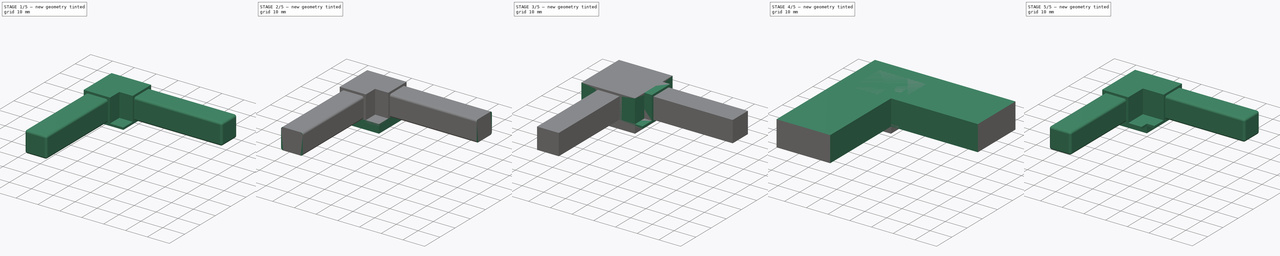
[diagram: build sequence overview — one tinted view per stage of 5, left to right]
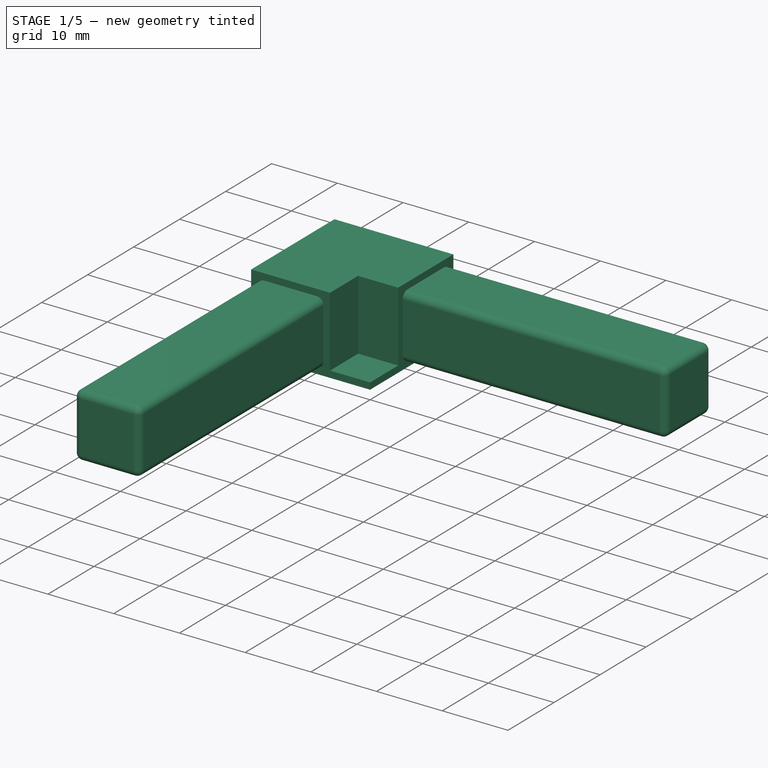
[diagram: stage 1 of 5 — iso view after this stage's code; geometry added in this stage tinted green]
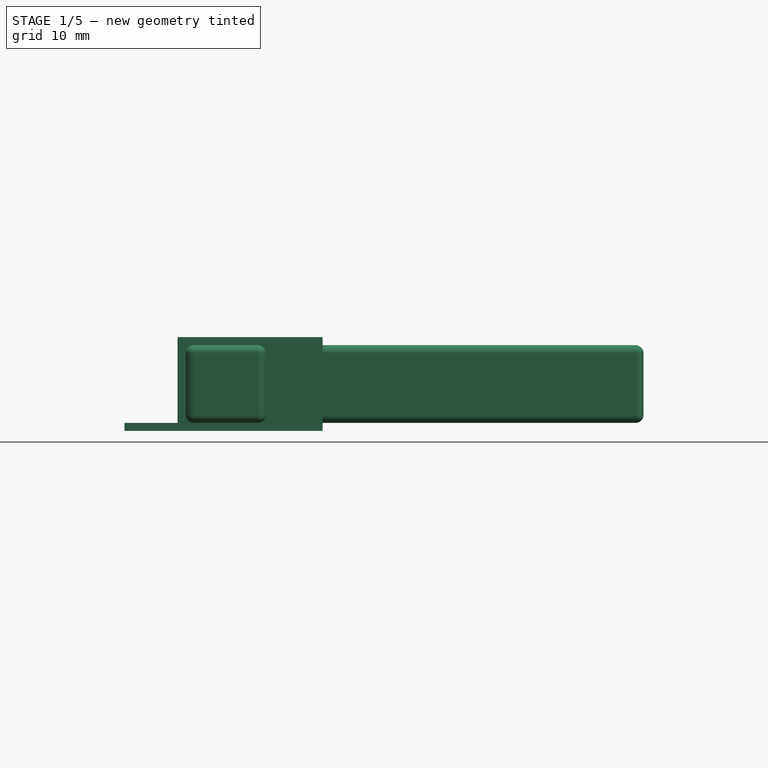
[diagram: stage 1 of 5 — front view after this stage's code; geometry added in this stage tinted green]
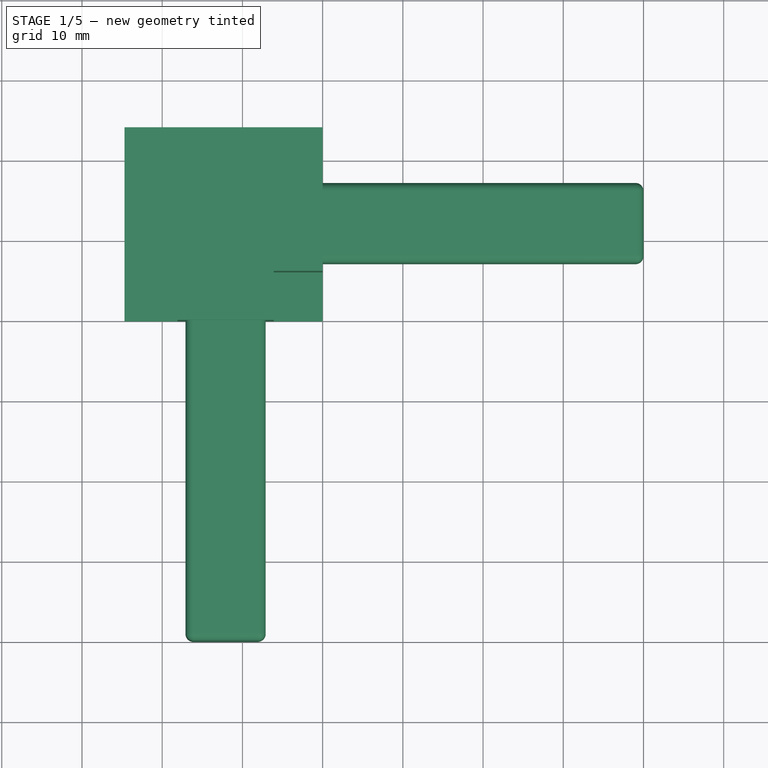
[diagram: stage 1 of 5 — top view after this stage's code; geometry added in this stage tinted green]
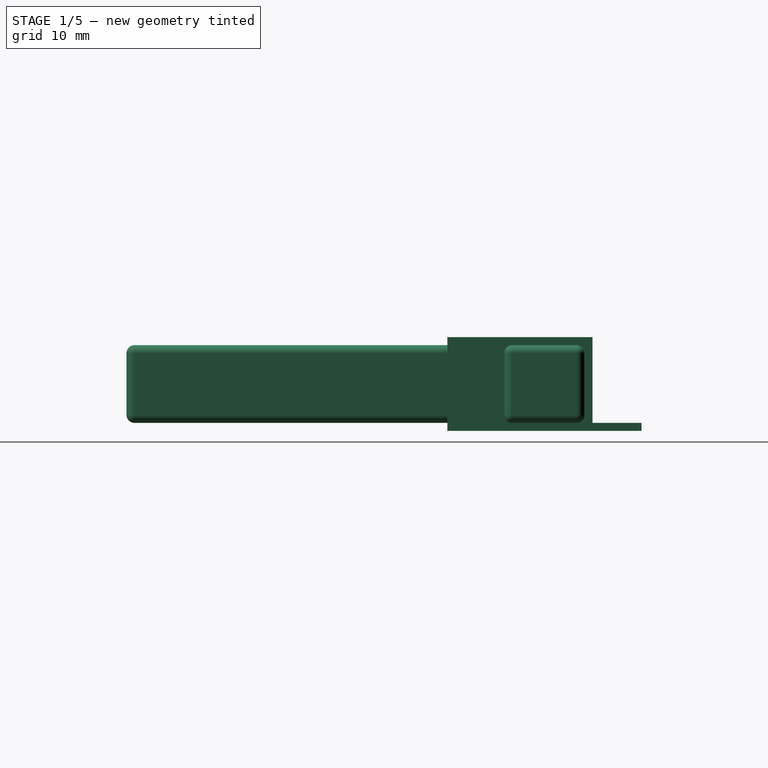
[diagram: stage 1 of 5 — right view after this stage's code; geometry added in this stage tinted green]
FCSTD DOCUMENT  (FreeCAD 2024.2R37179 (Git))
Label: Hoek
License: All rights reserved
LicenseURL: https://en.wikipedia.org/wiki/All_rights_reserved
objects: PartDesign::Pocket×20, Sketcher::SketchObject×16, PartDesign::Fillet×8, PartDesign::Pad×7, PartDesign::Body×4
note: 90 computed .brp shape members not serialized (recipe doc carries the construction recipe); baked Part::Feature solids carry a one-line shape summary decoded from their .brp

FEATURE [PartDesign::Body] Body002  label="Rechtsonder"
  Group = -> [Sketch008,Pad003,Sketch009,Pocket010,Sketch010,Pocket011,Sketch011,Pocket012,Fillet004,Fillet005,Pocket013,Pocket014,Pad004]
  Origin = -> Origin002
  Placement = pos=(59.8874,-16.0468,0) rot=(0,0,1;4.45059rad)
  Tip = -> Pad004
FEATURE [Sketcher::SketchObject] Sketch012
  AttachmentSupport = -> [XY_Plane003]
  FullyConstrained = true
  MapMode = 5
  sketch-geometry (6):
    g0: LineSegment StartX=0 StartY=0 StartZ=0 EndX=0 EndY=-40 EndZ=0
    g1: LineSegment StartX=0 StartY=-40 StartZ=0 EndX=-24.7 EndY=-40 EndZ=0
    g2: LineSegment StartX=-24.7 StartY=-40 StartZ=0 EndX=-24.7 EndY=24.7 EndZ=0
    g3: LineSegment StartX=-24.7 StartY=24.7 StartZ=0 EndX=40 EndY=24.7 EndZ=0
    g4: LineSegment StartX=40 StartY=24.7 StartZ=0 EndX=40 EndY=0 EndZ=0
    g5: LineSegment StartX=40 StartY=0 StartZ=0 EndX=0 EndY=0 EndZ=0
  constraints (17):
    c: Coincident(g-1,g0)
    c: PointOnObject(g0,g-2)
    c: Coincident(g0,g1)
    c: Horizontal(g1)
    c: Coincident(g1,g2)
    c: Vertical(g2)
    c: Coincident(g2,g3)
    c: Horizontal(g3)
    c: Coincident(g3,g4)
    c: PointOnObject(g4,g-1)
    c: Vertical(g4)
    c: Coincident(g4,g5)
    c: Coincident(g5,g0)
    c: DistanceX(g5,g5) = 40
    c: DistanceY(g0,g0) = 40
    c: DistanceX(g1,g1) = 24.7
    c: Equal(g1,g4)
FEATURE [PartDesign::Pad] Pad005
  Direction = (0,0,1)
  Length = 11.7
  Length2 = 10
  Profile = -> Sketch012
  ReferenceAxis = -> Sketch012 [N_Axis]
  Refine = true
  Suppressed = false
  Type = 0
  expr: Length = 11.7 mm
FEATURE [Sketcher::SketchObject] Sketch013
  AttachmentSupport = -> [Pad005]
  ExternalGeometry = -> [Pad005]
  FullyConstrained = true
  MapMode = 5
  Placement = pos=(40,0,0) rot=(0.57735,0.57735,0.57735;2.0944rad)
  sketch-geometry (8):
    g0: LineSegment StartX=7.1 StartY=10.7 StartZ=0 EndX=7.1 EndY=1 EndZ=0
    g1: LineSegment StartX=7.1 StartY=1 StartZ=0 EndX=17.1 EndY=1 EndZ=0
    g2: LineSegment StartX=17.1 StartY=1 StartZ=0 EndX=17.1 EndY=10.7 EndZ=0
    g3: LineSegment StartX=17.1 StartY=10.7 StartZ=0 EndX=7.1 EndY=10.7 EndZ=0
    g4: LineSegment StartX=24.7 StartY=11.7 StartZ=0 EndX=0 EndY=11.7 EndZ=0
    g5: LineSegment StartX=0 StartY=11.7 StartZ=0 EndX=0 EndY=0 EndZ=0
    g6: LineSegment StartX=0 StartY=0 StartZ=0 EndX=24.7 EndY=0 EndZ=0
    g7: LineSegment StartX=24.7 StartY=0 StartZ=0 EndX=24.7 EndY=11.7 EndZ=0
  constraints (22):
    c: Coincident(g0,g1)
    c: Coincident(g1,g2)
    c: Coincident(g2,g3)
    c: Coincident(g3,g0)
    c: Vertical(g0)
    c: Vertical(g2)
    c: Horizontal(g1)
    c: Horizontal(g3)
    c: Coincident(g4,g5)
    c: Coincident(g5,g6)
    c: Coincident(g6,g7)
    c: Coincident(g7,g4)
    c: Horizontal(g4)
    c: Horizontal(g6)
    c: Vertical(g5)
    c: Vertical(g7)
    c: Coincident(g4,g-3)
    c: Coincident(g5,g-1)
    c: DistanceX(g3,g3) = 10
    c: DistanceY(g0,g0) = 9.7
    c: DistanceX(g5,g0) = 7.1
    c: DistanceY(g6,g1) = 1
FEATURE [PartDesign::Pocket] Pocket015
  BaseFeature = -> Pad005
  Direction = (-1,0,0)
  Length = 40
  Length2 = 5
  Profile = -> Sketch013
  ReferenceAxis = -> Sketch013 [N_Axis]
  Refine = true
  Suppressed = false
  Type = 0
  expr: Length = 40
FEATURE [Sketcher::SketchObject] Sketch014
  AttachmentSupport = -> [Pocket015]
  ExternalGeometry = -> [Pocket015]
  FullyConstrained = true
  MapMode = 5
  Placement = pos=(0,-40,0) rot=(1,0,0;1.5708rad)
  sketch-geometry (8):
    g0: LineSegment StartX=-17.1 StartY=10.7 StartZ=0 EndX=-17.1 EndY=1 EndZ=0
    g1: LineSegment StartX=-17.1 StartY=1 StartZ=0 EndX=-7.1 EndY=1 EndZ=0
    g2: LineSegment StartX=-7.1 StartY=1 StartZ=0 EndX=-7.1 EndY=10.7 EndZ=0
    g3: LineSegment StartX=-7.1 StartY=10.7 StartZ=0 EndX=-17.1 EndY=10.7 EndZ=0
    g4: LineSegment StartX=-24.7 StartY=11.7 StartZ=0 EndX=-24.7 EndY=0 EndZ=0
    g5: LineSegment StartX=-24.7 StartY=0 StartZ=0 EndX=0 EndY=0 EndZ=0
    g6: LineSegment StartX=0 StartY=0 StartZ=0 EndX=0 EndY=11.7 EndZ=0
    g7: LineSegment StartX=0 StartY=11.7 StartZ=0 EndX=-24.7 EndY=11.7 EndZ=0
  constraints (22):
    c: Coincident(g0,g1)
    c: Coincident(g1,g2)
    c: Coincident(g2,g3)
    c: Coincident(g3,g0)
    c: Vertical(g0)
    c: Vertical(g2)
    c: Horizontal(g1)
    c: Horizontal(g3)
    c: Coincident(g4,g5)
    c: Coincident(g5,g6)
    c: Coincident(g6,g7)
    c: Coincident(g7,g4)
    c: Vertical(g4)
    c: Vertical(g6)
    c: Horizontal(g5)
    c: Horizontal(g7)
    c: Coincident(g4,g-3)
    c: Coincident(g5,g-1)
    c: DistanceX(g3,g3) = 10
    c: DistanceY(g0,g0) = 9.7
    c: DistanceX(g1,g5) = 7.1
    c: DistanceY(g5,g1) = 1
FEATURE [PartDesign::Pocket] Pocket016
  BaseFeature = -> Pocket015
  Direction = (0,1,-2e-16)
  Length = 40
  Length2 = 5
  Profile = -> Sketch014
  ReferenceAxis = -> Sketch014 [N_Axis]
  Refine = true
  Suppressed = false
  Type = 0
FEATURE [Sketcher::SketchObject] Sketch015
  AttachmentSupport = -> [Pocket016]
  ExternalGeometry = -> [Pocket016]
  FullyConstrained = true
  MapMode = 5
  Placement = pos=(0,0,11.7) rot=(0,0,1;0rad)
  sketch-geometry (10):
    g0: LineSegment StartX=0 StartY=0 StartZ=0 EndX=0 EndY=6.1 EndZ=0
    g1: LineSegment StartX=0 StartY=6.1 StartZ=0 EndX=-6.1 EndY=6.1 EndZ=0
    g2: LineSegment StartX=-6.1 StartY=6.1 StartZ=0 EndX=-6.1 EndY=0 EndZ=0
    g3: LineSegment StartX=-6.1 StartY=0 StartZ=0 EndX=0 EndY=0 EndZ=0
    g4: LineSegment StartX=-24.7 StartY=24.7 StartZ=0 EndX=-24.7 EndY=0 EndZ=0
    g5: LineSegment StartX=-24.7 StartY=0 StartZ=0 EndX=-18.1 EndY=0 EndZ=0
    g6: LineSegment StartX=-18.1 StartY=0 StartZ=0 EndX=-18.1 EndY=18.1 EndZ=0
    g7: LineSegment StartX=-18.1 StartY=18.1 StartZ=0 EndX=0 EndY=18.1 EndZ=0
    g8: LineSegment StartX=0 StartY=18.1 StartZ=0 EndX=0 EndY=24.7 EndZ=0
    g9: LineSegment StartX=0 StartY=24.7 StartZ=0 EndX=-24.7 EndY=24.7 EndZ=0
  constraints (26):
    c: Coincident(g0,g1)
    c: Coincident(g1,g2)
    c: Coincident(g2,g3)
    c: Coincident(g3,g0)
    c: Vertical(g0)
    c: Vertical(g2)
    c: Horizontal(g1)
    c: Horizontal(g3)
    c: Coincident(g0,g-1)
    c: DistanceY(g0,g-3) = 1
    c: DistanceX(g-4,g2) = 1
    c: Coincident(g-6,g4)
    c: Coincident(g4,g-6)
    c: Coincident(g4,g5)
    c: PointOnObject(g5,g-1)
    c: Coincident(g5,g6)
    c: Vertical(g6)
    c: Coincident(g6,g7)
    c: PointOnObject(g7,g-2)
    c: Horizontal(g7)
    c: Coincident(g7,g8)
    c: Coincident(g8,g-5)
    c: Coincident(g8,g9)
    c: Coincident(g9,g4)
    c: Distance(g7,g-8) = 1
    c: DistanceX(g5,g-7) = 1
FEATURE [PartDesign::Pocket] Pocket017
  BaseFeature = -> Pocket016
  Direction = (0,0,-1)
  Length = 10.7
  Length2 = 5
  Profile = -> Sketch015
  ReferenceAxis = -> Sketch015 [N_Axis]
  Refine = true
  Suppressed = false
  Type = 0
FEATURE [PartDesign::Fillet] Fillet006
  Base = -> Pocket017 [Edge6,Edge5,Edge8,Edge48,Edge47,Edge50,Edge10,Edge52]
  BaseFeature = -> Pocket017
  Radius = 1
  Refine = true
  SupportTransform = false
  Suppressed = false
  UseAllEdges = false
FEATURE [PartDesign::Fillet] Fillet007
  Base = -> Fillet006 [Edge1,Edge70]
  BaseFeature = -> Fillet006
  Radius = 1
  Refine = true
  SupportTransform = false
  Suppressed = false
  UseAllEdges = false
FEATURE [PartDesign::Pocket] Pocket018
  BaseFeature = -> Fillet007
  Direction = (0,-1,0)
  Length = 0.5
  Length2 = 5
  Profile = -> Fillet007 [Face27]
  Refine = true
  Suppressed = false
  Type = 0
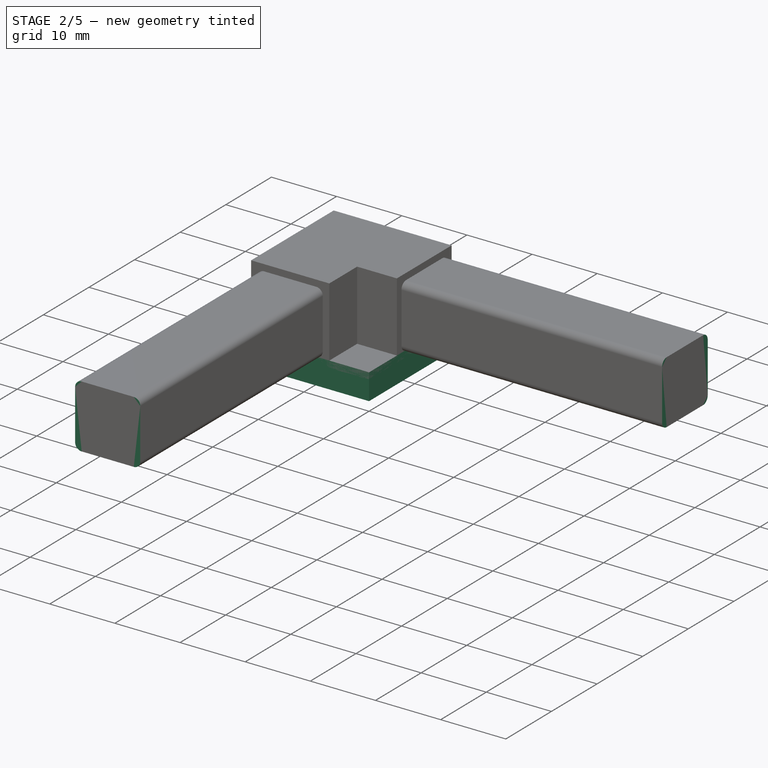
[diagram: stage 2 of 5 — iso view after this stage's code; geometry added in this stage tinted green]
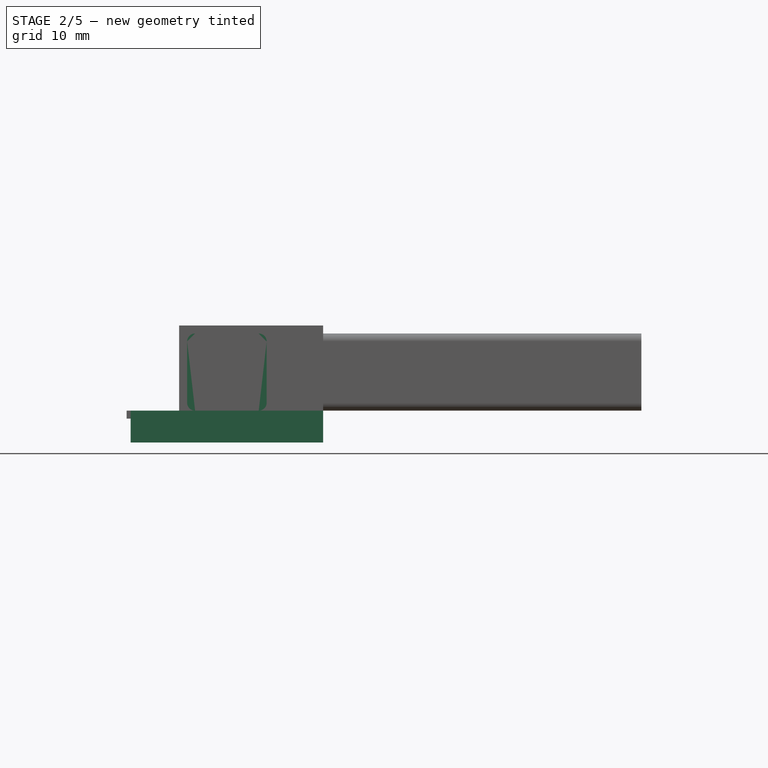
[diagram: stage 2 of 5 — front view after this stage's code; geometry added in this stage tinted green]
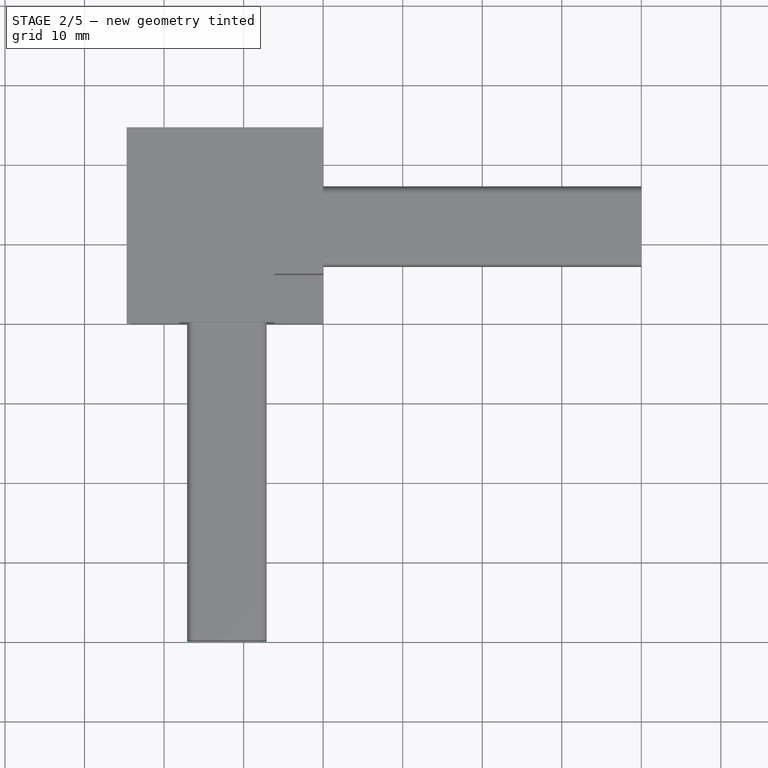
[diagram: stage 2 of 5 — top view after this stage's code; geometry added in this stage tinted green]
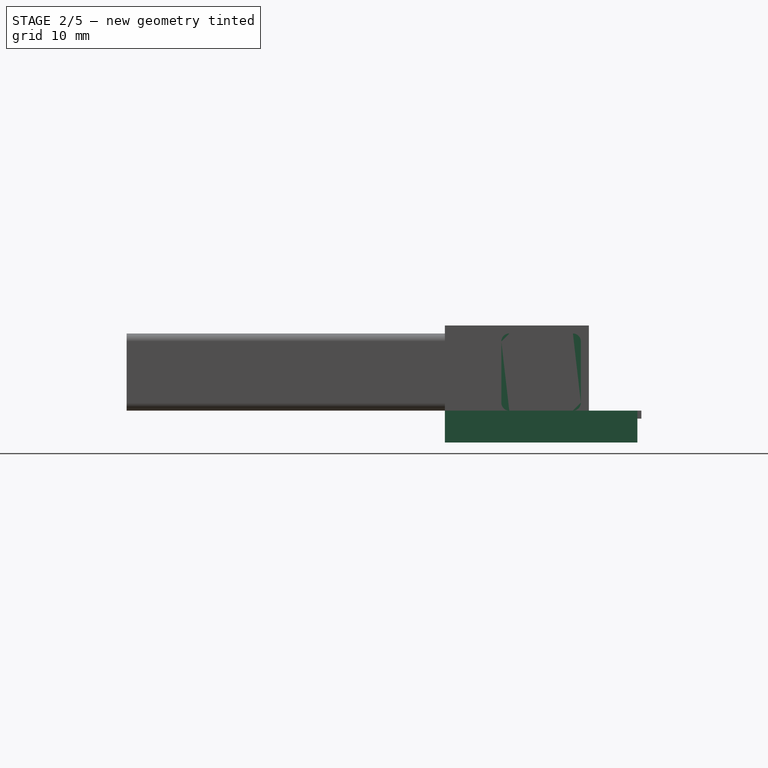
[diagram: stage 2 of 5 — right view after this stage's code; geometry added in this stage tinted green]
FEATURE [PartDesign::Body] Body001  label="Rechtsboven"
  Group = -> [Sketch004,Pad001,Sketch005,Pocket005,Sketch006,Pocket006,Sketch007,Pocket007,Fillet002,Fillet003,Pocket008,Pocket009,Pad002]
  Origin = -> Origin001
  Placement = pos=(0,-70,0) rot=(0,0,1;0rad)
  Tip = -> Pad002
FEATURE [Sketcher::SketchObject] Sketch008
  AttachmentSupport = -> [XY_Plane002]
  FullyConstrained = true
  MapMode = 5
  sketch-geometry (6):
    g0: LineSegment StartX=0 StartY=0 StartZ=0 EndX=0 EndY=-40 EndZ=0
    g1: LineSegment StartX=0 StartY=-40 StartZ=0 EndX=-24.7 EndY=-40 EndZ=0
    g2: LineSegment StartX=-24.7 StartY=-40 StartZ=0 EndX=-24.7 EndY=24.7 EndZ=0
    g3: LineSegment StartX=-24.7 StartY=24.7 StartZ=0 EndX=40 EndY=24.7 EndZ=0
    g4: LineSegment StartX=40 StartY=24.7 StartZ=0 EndX=40 EndY=0 EndZ=0
    g5: LineSegment StartX=40 StartY=0 StartZ=0 EndX=0 EndY=0 EndZ=0
  constraints (17):
    c: Coincident(g-1,g0)
    c: PointOnObject(g0,g-2)
    c: Coincident(g0,g1)
    c: Horizontal(g1)
    c: Coincident(g1,g2)
    c: Vertical(g2)
    c: Coincident(g2,g3)
    c: Horizontal(g3)
    c: Coincident(g3,g4)
    c: PointOnObject(g4,g-1)
    c: Vertical(g4)
    c: Coincident(g4,g5)
    c: Coincident(g5,g0)
    c: DistanceX(g5,g5) = 40
    c: DistanceY(g0,g0) = 40
    c: DistanceX(g1,g1) = 24.7
    c: Equal(g1,g4)
FEATURE [PartDesign::Pad] Pad003
  Direction = (0,0,1)
  Length = 11.7
  Length2 = 10
  Profile = -> Sketch008
  ReferenceAxis = -> Sketch008 [N_Axis]
  Refine = true
  Suppressed = false
  Type = 0
  expr: Length = 11.7 mm
FEATURE [Sketcher::SketchObject] Sketch009
  AttachmentSupport = -> [Pad003]
  ExternalGeometry = -> [Pad003]
  FullyConstrained = true
  MapMode = 5
  Placement = pos=(40,0,0) rot=(0.57735,0.57735,0.57735;2.0944rad)
  sketch-geometry (8):
    g0: LineSegment StartX=7.1 StartY=10.7 StartZ=0 EndX=7.1 EndY=1 EndZ=0
    g1: LineSegment StartX=7.1 StartY=1 StartZ=0 EndX=17.1 EndY=1 EndZ=0
    g2: LineSegment StartX=17.1 StartY=1 StartZ=0 EndX=17.1 EndY=10.7 EndZ=0
    g3: LineSegment StartX=17.1 StartY=10.7 StartZ=0 EndX=7.1 EndY=10.7 EndZ=0
    g4: LineSegment StartX=24.7 StartY=11.7 StartZ=0 EndX=0 EndY=11.7 EndZ=0
    g5: LineSegment StartX=0 StartY=11.7 StartZ=0 EndX=0 EndY=0 EndZ=0
    g6: LineSegment StartX=0 StartY=0 StartZ=0 EndX=24.7 EndY=0 EndZ=0
    g7: LineSegment StartX=24.7 StartY=0 StartZ=0 EndX=24.7 EndY=11.7 EndZ=0
  constraints (22):
    c: Coincident(g0,g1)
    c: Coincident(g1,g2)
    c: Coincident(g2,g3)
    c: Coincident(g3,g0)
    c: Vertical(g0)
    c: Vertical(g2)
    c: Horizontal(g1)
    c: Horizontal(g3)
    c: Coincident(g4,g5)
    c: Coincident(g5,g6)
    c: Coincident(g6,g7)
    c: Coincident(g7,g4)
    c: Horizontal(g4)
    c: Horizontal(g6)
    c: Vertical(g5)
    c: Vertical(g7)
    c: Coincident(g4,g-3)
    c: Coincident(g5,g-1)
    c: DistanceX(g3,g3) = 10
    c: DistanceY(g0,g0) = 9.7
    c: DistanceX(g5,g0) = 7.1
    c: DistanceY(g6,g1) = 1
FEATURE [PartDesign::Pocket] Pocket010
  BaseFeature = -> Pad003
  Direction = (-1,0,0)
  Length = 40
  Length2 = 5
  Profile = -> Sketch009
  ReferenceAxis = -> Sketch009 [N_Axis]
  Refine = true
  Suppressed = false
  Type = 0
  expr: Length = 40
FEATURE [Sketcher::SketchObject] Sketch010
  AttachmentSupport = -> [Pocket010]
  ExternalGeometry = -> [Pocket010]
  FullyConstrained = true
  MapMode = 5
  Placement = pos=(0,-40,0) rot=(1,0,0;1.5708rad)
  sketch-geometry (8):
    g0: LineSegment StartX=-17.1 StartY=10.7 StartZ=0 EndX=-17.1 EndY=1 EndZ=0
    g1: LineSegment StartX=-17.1 StartY=1 StartZ=0 EndX=-7.1 EndY=1 EndZ=0
    g2: LineSegment StartX=-7.1 StartY=1 StartZ=0 EndX=-7.1 EndY=10.7 EndZ=0
    g3: LineSegment StartX=-7.1 StartY=10.7 StartZ=0 EndX=-17.1 EndY=10.7 EndZ=0
    g4: LineSegment StartX=-24.7 StartY=11.7 StartZ=0 EndX=-24.7 EndY=0 EndZ=0
    g5: LineSegment StartX=-24.7 StartY=0 StartZ=0 EndX=0 EndY=0 EndZ=0
    g6: LineSegment StartX=0 StartY=0 StartZ=0 EndX=0 EndY=11.7 EndZ=0
    g7: LineSegment StartX=0 StartY=11.7 StartZ=0 EndX=-24.7 EndY=11.7 EndZ=0
  constraints (22):
    c: Coincident(g0,g1)
    c: Coincident(g1,g2)
    c: Coincident(g2,g3)
    c: Coincident(g3,g0)
    c: Vertical(g0)
    c: Vertical(g2)
    c: Horizontal(g1)
    c: Horizontal(g3)
    c: Coincident(g4,g5)
    c: Coincident(g5,g6)
    c: Coincident(g6,g7)
    c: Coincident(g7,g4)
    c: Vertical(g4)
    c: Vertical(g6)
    c: Horizontal(g5)
    c: Horizontal(g7)
    c: Coincident(g4,g-3)
    c: Coincident(g5,g-1)
    c: DistanceX(g3,g3) = 10
    c: DistanceY(g0,g0) = 9.7
    c: DistanceX(g1,g5) = 7.1
    c: DistanceY(g5,g1) = 1
FEATURE [PartDesign::Pocket] Pocket011
  BaseFeature = -> Pocket010
  Direction = (0,1,-2e-16)
  Length = 40
  Length2 = 5
  Profile = -> Sketch010
  ReferenceAxis = -> Sketch010 [N_Axis]
  Refine = true
  Suppressed = false
  Type = 0
FEATURE [Sketcher::SketchObject] Sketch011
  AttachmentSupport = -> [Pocket011]
  ExternalGeometry = -> [Pocket011]
  FullyConstrained = true
  MapMode = 5
  Placement = pos=(0,0,11.7) rot=(0,0,1;0rad)
  sketch-geometry (10):
    g0: LineSegment StartX=0 StartY=0 StartZ=0 EndX=0 EndY=6.1 EndZ=0
    g1: LineSegment StartX=0 StartY=6.1 StartZ=0 EndX=-6.1 EndY=6.1 EndZ=0
    g2: LineSegment StartX=-6.1 StartY=6.1 StartZ=0 EndX=-6.1 EndY=0 EndZ=0
    g3: LineSegment StartX=-6.1 StartY=0 StartZ=0 EndX=0 EndY=0 EndZ=0
    g4: LineSegment StartX=-24.7 StartY=24.7 StartZ=0 EndX=-24.7 EndY=0 EndZ=0
    g5: LineSegment StartX=-24.7 StartY=0 StartZ=0 EndX=-18.1 EndY=0 EndZ=0
    g6: LineSegment StartX=-18.1 StartY=0 StartZ=0 EndX=-18.1 EndY=18.1 EndZ=0
    g7: LineSegment StartX=-18.1 StartY=18.1 StartZ=0 EndX=0 EndY=18.1 EndZ=0
    g8: LineSegment StartX=0 StartY=18.1 StartZ=0 EndX=0 EndY=24.7 EndZ=0
    g9: LineSegment StartX=0 StartY=24.7 StartZ=0 EndX=-24.7 EndY=24.7 EndZ=0
  constraints (26):
    c: Coincident(g0,g1)
    c: Coincident(g1,g2)
    c: Coincident(g2,g3)
    c: Coincident(g3,g0)
    c: Vertical(g0)
    c: Vertical(g2)
    c: Horizontal(g1)
    c: Horizontal(g3)
    c: Coincident(g0,g-1)
    c: DistanceY(g0,g-3) = 1
    c: DistanceX(g-4,g2) = 1
    c: Coincident(g-6,g4)
    c: Coincident(g4,g-6)
    c: Coincident(g4,g5)
    c: PointOnObject(g5,g-1)
    c: Coincident(g5,g6)
    c: Vertical(g6)
    c: Coincident(g6,g7)
    c: PointOnObject(g7,g-2)
    c: Horizontal(g7)
    c: Coincident(g7,g8)
    c: Coincident(g8,g-5)
    c: Coincident(g8,g9)
    c: Coincident(g9,g4)
    c: Distance(g7,g-8) = 1
    c: DistanceX(g5,g-7) = 1
FEATURE [PartDesign::Pocket] Pocket012
  BaseFeature = -> Pocket011
  Direction = (0,0,-1)
  Length = 10.7
  Length2 = 5
  Profile = -> Sketch011
  ReferenceAxis = -> Sketch011 [N_Axis]
  Refine = true
  Suppressed = false
  Type = 0
FEATURE [PartDesign::Fillet] Fillet004
  Base = -> Pocket012 [Edge6,Edge5,Edge8,Edge48,Edge47,Edge50,Edge10,Edge52]
  BaseFeature = -> Pocket012
  Radius = 1
  Refine = true
  SupportTransform = false
  Suppressed = false
  UseAllEdges = false
FEATURE [PartDesign::Pocket] Pocket019
  BaseFeature = -> Pocket018
  Direction = (1,0,0)
  Length = 0.5
  Length2 = 5
  Profile = -> Pocket018 [Face19]
  Refine = true
  Suppressed = false
  Type = 0
FEATURE [PartDesign::Pad] Pad006
  BaseFeature = -> Pocket019
  Direction = (0,0,-1)
  Length = 3
  Length2 = 10
  Profile = -> Pocket019 [Face20]
  Refine = true
  Suppressed = false
  Type = 0
FEATURE [PartDesign::Body] Body003  label="Dikker Hoek"
  Group = -> [Sketch012,Pad005,Sketch013,Pocket015,Sketch014,Pocket016,Sketch015,Pocket017,Fillet006,Fillet007,Pocket018,Pocket019,Pad006]
  Origin = -> Origin003
  Tip = -> Pad006
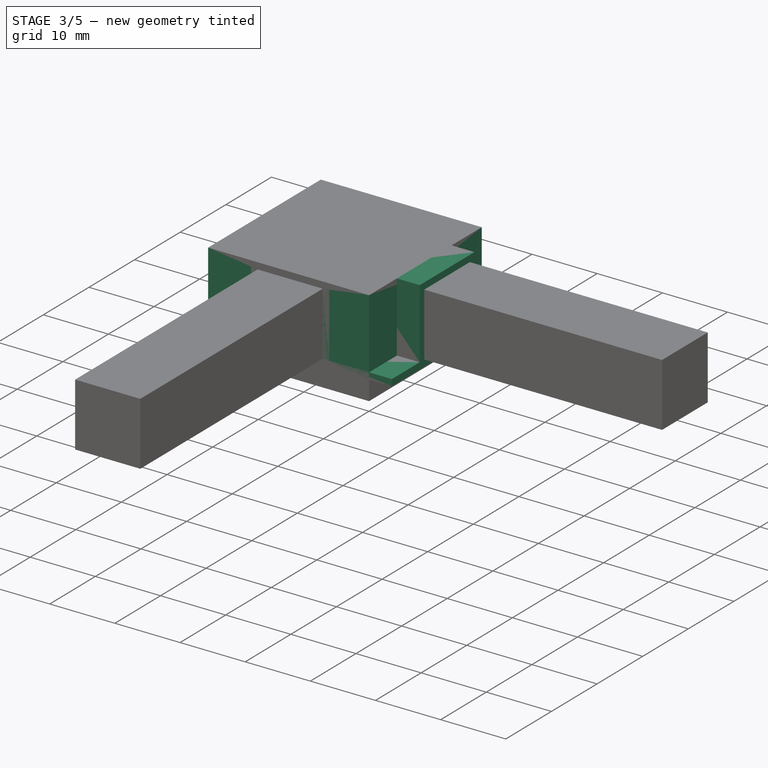
[diagram: stage 3 of 5 — iso view after this stage's code; geometry added in this stage tinted green]
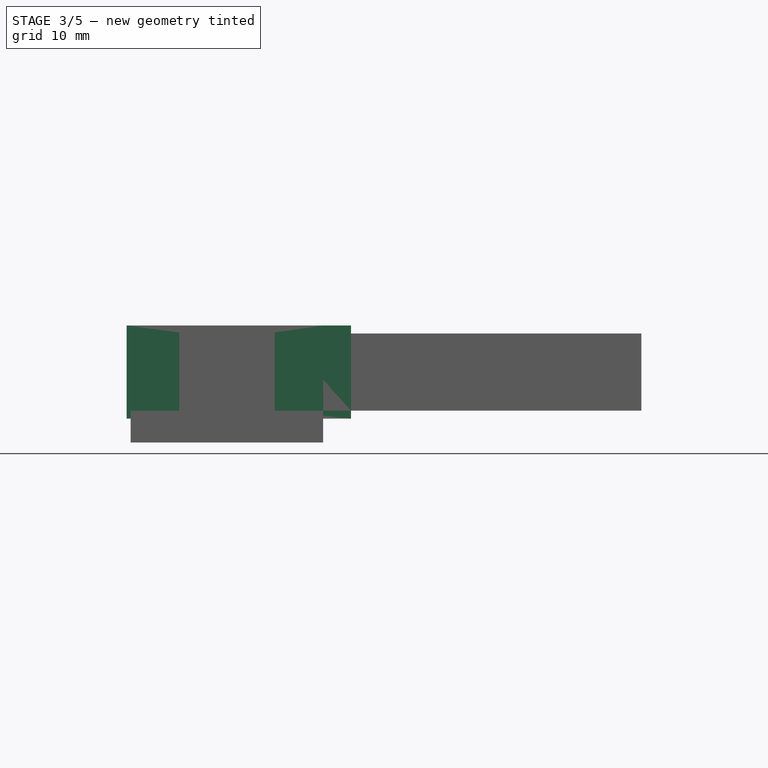
[diagram: stage 3 of 5 — front view after this stage's code; geometry added in this stage tinted green]
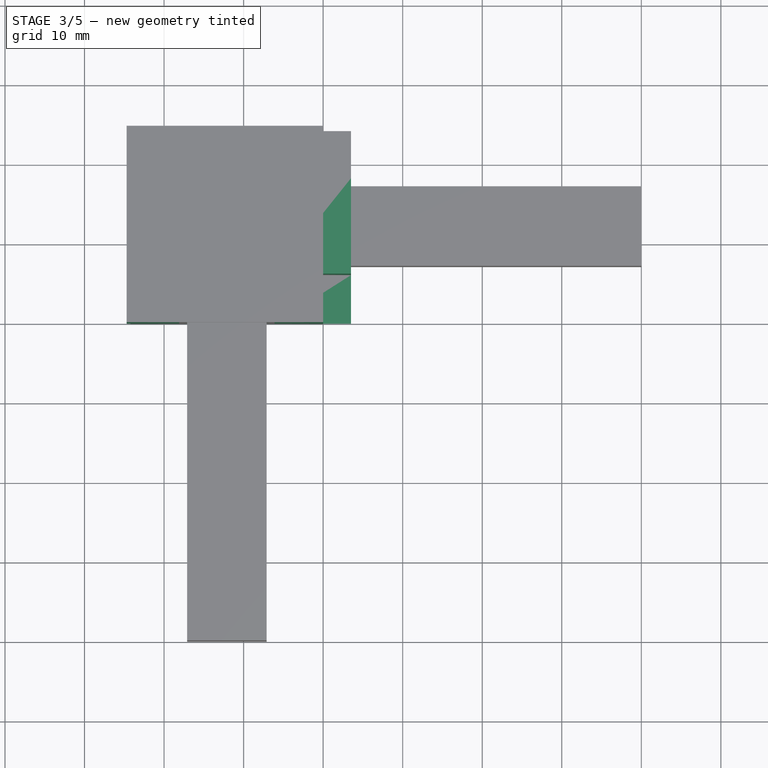
[diagram: stage 3 of 5 — top view after this stage's code; geometry added in this stage tinted green]
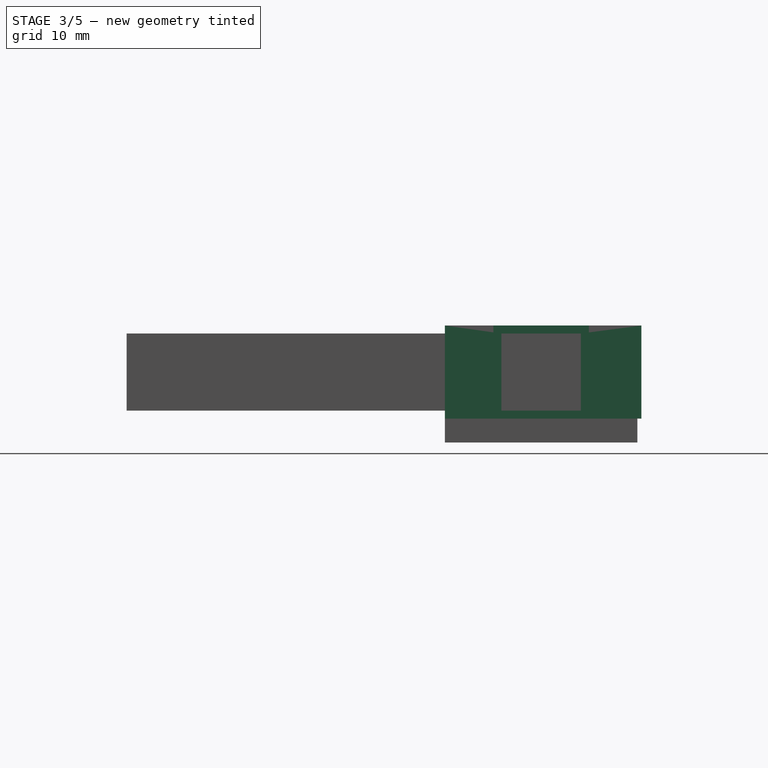
[diagram: stage 3 of 5 — right view after this stage's code; geometry added in this stage tinted green]
FEATURE [PartDesign::Body] Body
  Group = -> [Sketch,Pad,Sketch001,Pocket,Sketch002,Pocket001,Sketch003,Pocket002,Fillet,Fillet001,Pocket003,Pocket004]
  Origin = -> Origin
  Tip = -> Pocket004
FEATURE [Sketcher::SketchObject] Sketch004
  AttachmentSupport = -> [XY_Plane001]
  FullyConstrained = true
  MapMode = 5
  sketch-geometry (6):
    g0: LineSegment StartX=0 StartY=0 StartZ=0 EndX=0 EndY=-40 EndZ=0
    g1: LineSegment StartX=0 StartY=-40 StartZ=0 EndX=-24.7 EndY=-40 EndZ=0
    g2: LineSegment StartX=-24.7 StartY=-40 StartZ=0 EndX=-24.7 EndY=24.7 EndZ=0
    g3: LineSegment StartX=-24.7 StartY=24.7 StartZ=0 EndX=40 EndY=24.7 EndZ=0
    g4: LineSegment StartX=40 StartY=24.7 StartZ=0 EndX=40 EndY=0 EndZ=0
    g5: LineSegment StartX=40 StartY=0 StartZ=0 EndX=0 EndY=0 EndZ=0
  constraints (17):
    c: Coincident(g-1,g0)
    c: PointOnObject(g0,g-2)
    c: Coincident(g0,g1)
    c: Horizontal(g1)
    c: Coincident(g1,g2)
    c: Vertical(g2)
    c: Coincident(g2,g3)
    c: Horizontal(g3)
    c: Coincident(g3,g4)
    c: PointOnObject(g4,g-1)
    c: Vertical(g4)
    c: Coincident(g4,g5)
    c: Coincident(g5,g0)
    c: DistanceX(g5,g5) = 40
    c: DistanceY(g0,g0) = 40
    c: DistanceX(g1,g1) = 24.7
    c: Equal(g1,g4)
FEATURE [PartDesign::Pad] Pad001
  Direction = (0,0,1)
  Length = 11.7
  Length2 = 10
  Profile = -> Sketch004
  ReferenceAxis = -> Sketch004 [N_Axis]
  Refine = true
  Suppressed = false
  Type = 0
  expr: Length = 11.7 mm
FEATURE [Sketcher::SketchObject] Sketch005
  AttachmentSupport = -> [Pad001]
  ExternalGeometry = -> [Pad001]
  FullyConstrained = true
  MapMode = 5
  Placement = pos=(40,0,0) rot=(0.57735,0.57735,0.57735;2.0944rad)
  sketch-geometry (8):
    g0: LineSegment StartX=7.1 StartY=10.7 StartZ=0 EndX=7.1 EndY=1 EndZ=0
    g1: LineSegment StartX=7.1 StartY=1 StartZ=0 EndX=17.1 EndY=1 EndZ=0
    g2: LineSegment StartX=17.1 StartY=1 StartZ=0 EndX=17.1 EndY=10.7 EndZ=0
    g3: LineSegment StartX=17.1 StartY=10.7 StartZ=0 EndX=7.1 EndY=10.7 EndZ=0
    g4: LineSegment StartX=24.7 StartY=11.7 StartZ=0 EndX=0 EndY=11.7 EndZ=0
    g5: LineSegment StartX=0 StartY=11.7 StartZ=0 EndX=0 EndY=0 EndZ=0
    g6: LineSegment StartX=0 StartY=0 StartZ=0 EndX=24.7 EndY=0 EndZ=0
    g7: LineSegment StartX=24.7 StartY=0 StartZ=0 EndX=24.7 EndY=11.7 EndZ=0
  constraints (22):
    c: Coincident(g0,g1)
    c: Coincident(g1,g2)
    c: Coincident(g2,g3)
    c: Coincident(g3,g0)
    c: Vertical(g0)
    c: Vertical(g2)
    c: Horizontal(g1)
    c: Horizontal(g3)
    c: Coincident(g4,g5)
    c: Coincident(g5,g6)
    c: Coincident(g6,g7)
    c: Coincident(g7,g4)
    c: Horizontal(g4)
    c: Horizontal(g6)
    c: Vertical(g5)
    c: Vertical(g7)
    c: Coincident(g4,g-3)
    c: Coincident(g5,g-1)
    c: DistanceX(g3,g3) = 10
    c: DistanceY(g0,g0) = 9.7
    c: DistanceX(g5,g0) = 7.1
    c: DistanceY(g6,g1) = 1
FEATURE [PartDesign::Pocket] Pocket005
  BaseFeature = -> Pad001
  Direction = (-1,0,0)
  Length = 40
  Length2 = 5
  Profile = -> Sketch005
  ReferenceAxis = -> Sketch005 [N_Axis]
  Refine = true
  Suppressed = false
  Type = 0
  expr: Length = 40
FEATURE [Sketcher::SketchObject] Sketch006
  AttachmentSupport = -> [Pocket005]
  ExternalGeometry = -> [Pocket005]
  FullyConstrained = true
  MapMode = 5
  Placement = pos=(0,-40,0) rot=(1,0,0;1.5708rad)
  sketch-geometry (8):
    g0: LineSegment StartX=-17.1 StartY=10.7 StartZ=0 EndX=-17.1 EndY=1 EndZ=0
    g1: LineSegment StartX=-17.1 StartY=1 StartZ=0 EndX=-7.1 EndY=1 EndZ=0
    g2: LineSegment StartX=-7.1 StartY=1 StartZ=0 EndX=-7.1 EndY=10.7 EndZ=0
    g3: LineSegment StartX=-7.1 StartY=10.7 StartZ=0 EndX=-17.1 EndY=10.7 EndZ=0
    g4: LineSegment StartX=-24.7 StartY=11.7 StartZ=0 EndX=-24.7 EndY=0 EndZ=0
    g5: LineSegment StartX=-24.7 StartY=0 StartZ=0 EndX=0 EndY=0 EndZ=0
    g6: LineSegment StartX=0 StartY=0 StartZ=0 EndX=0 EndY=11.7 EndZ=0
    g7: LineSegment StartX=0 StartY=11.7 StartZ=0 EndX=-24.7 EndY=11.7 EndZ=0
  constraints (22):
    c: Coincident(g0,g1)
    c: Coincident(g1,g2)
    c: Coincident(g2,g3)
    c: Coincident(g3,g0)
    c: Vertical(g0)
    c: Vertical(g2)
    c: Horizontal(g1)
    c: Horizontal(g3)
    c: Coincident(g4,g5)
    c: Coincident(g5,g6)
    c: Coincident(g6,g7)
    c: Coincident(g7,g4)
    c: Vertical(g4)
    c: Vertical(g6)
    c: Horizontal(g5)
    c: Horizontal(g7)
    c: Coincident(g4,g-3)
    c: Coincident(g5,g-1)
    c: DistanceX(g3,g3) = 10
    c: DistanceY(g0,g0) = 9.7
    c: DistanceX(g1,g5) = 7.1
    c: DistanceY(g5,g1) = 1
FEATURE [PartDesign::Pocket] Pocket006
  BaseFeature = -> Pocket005
  Direction = (0,1,-2e-16)
  Length = 40
  Length2 = 5
  Profile = -> Sketch006
  ReferenceAxis = -> Sketch006 [N_Axis]
  Refine = true
  Suppressed = false
  Type = 0
FEATURE [PartDesign::Fillet] Fillet005
  Base = -> Fillet004 [Edge1,Edge70]
  BaseFeature = -> Fillet004
  Radius = 1
  Refine = true
  SupportTransform = false
  Suppressed = false
  UseAllEdges = false
FEATURE [PartDesign::Pocket] Pocket013
  BaseFeature = -> Fillet005
  Direction = (0,-1,0)
  Length = 0.5
  Length2 = 5
  Profile = -> Fillet005 [Face27]
  Refine = true
  Suppressed = false
  Type = 0
FEATURE [PartDesign::Pocket] Pocket014
  BaseFeature = -> Pocket013
  Direction = (1,0,0)
  Length = 0.5
  Length2 = 5
  Profile = -> Pocket013 [Face19]
  Refine = true
  Suppressed = false
  Type = 0
FEATURE [PartDesign::Pad] Pad004
  BaseFeature = -> Pocket014
  Direction = (1,0,0)
  Length = 3.5
  Length2 = 10
  Profile = -> Pocket014 [Face21]
  Refine = true
  Suppressed = false
  Type = 0
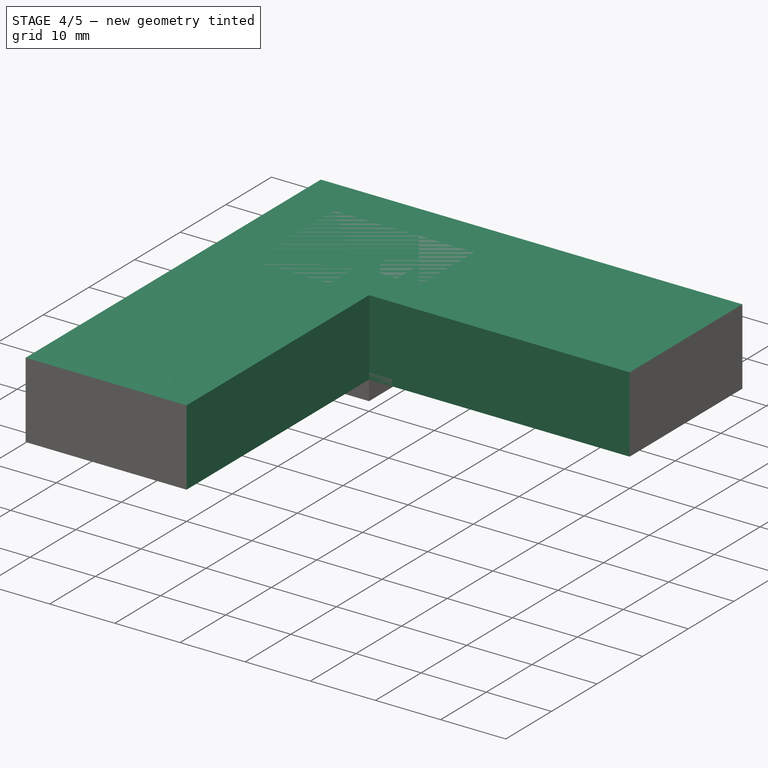
[diagram: stage 4 of 5 — iso view after this stage's code; geometry added in this stage tinted green]
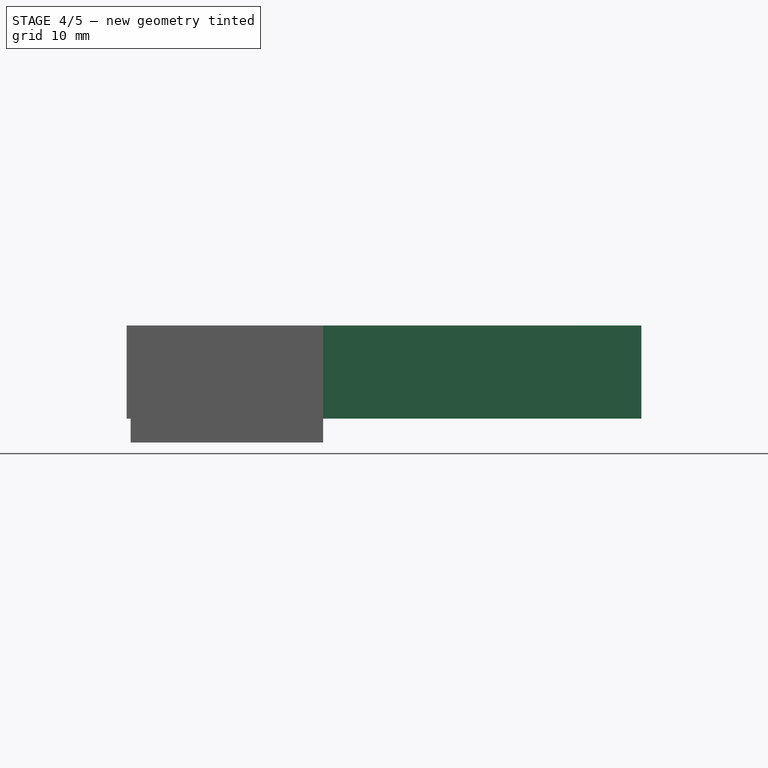
[diagram: stage 4 of 5 — front view after this stage's code; geometry added in this stage tinted green]
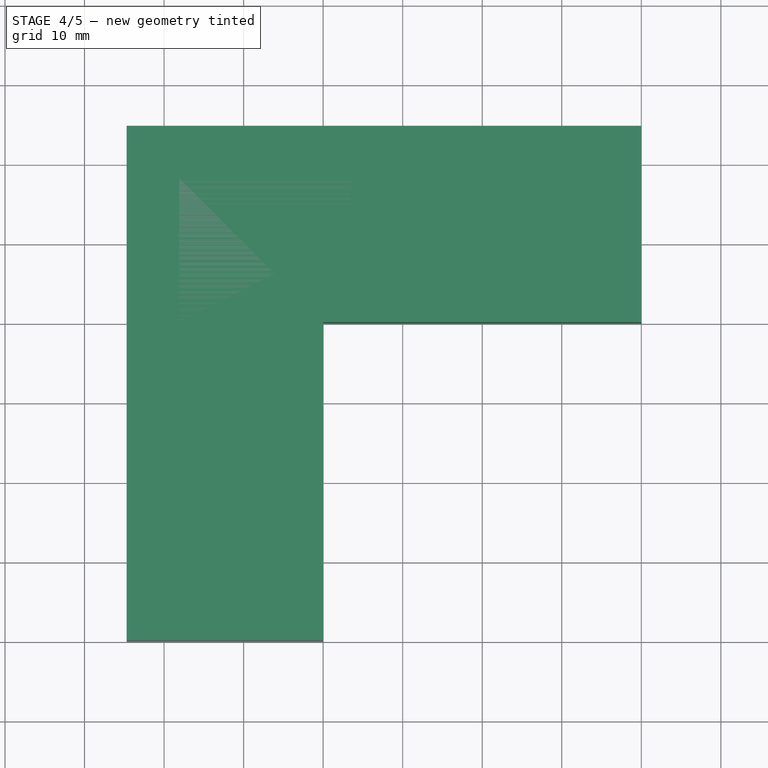
[diagram: stage 4 of 5 — top view after this stage's code; geometry added in this stage tinted green]
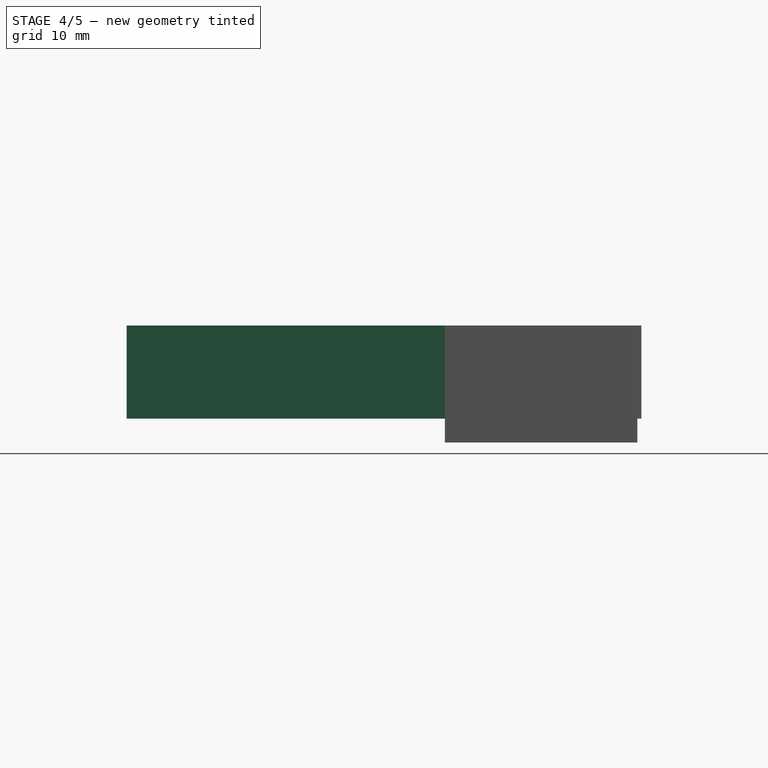
[diagram: stage 4 of 5 — right view after this stage's code; geometry added in this stage tinted green]
FEATURE [Sketcher::SketchObject] Sketch
  AttachmentSupport = -> [XY_Plane]
  FullyConstrained = true
  MapMode = 5
  sketch-geometry (6):
    g0: LineSegment StartX=0 StartY=0 StartZ=0 EndX=0 EndY=-40 EndZ=0
    g1: LineSegment StartX=0 StartY=-40 StartZ=0 EndX=-24.7 EndY=-40 EndZ=0
    g2: LineSegment StartX=-24.7 StartY=-40 StartZ=0 EndX=-24.7 EndY=24.7 EndZ=0
    g3: LineSegment StartX=-24.7 StartY=24.7 StartZ=0 EndX=40 EndY=24.7 EndZ=0
    g4: LineSegment StartX=40 StartY=24.7 StartZ=0 EndX=40 EndY=0 EndZ=0
    g5: LineSegment StartX=40 StartY=0 StartZ=0 EndX=0 EndY=0 EndZ=0
  constraints (17):
    c: Coincident(g-1,g0)
    c: PointOnObject(g0,g-2)
    c: Coincident(g0,g1)
    c: Horizontal(g1)
    c: Coincident(g1,g2)
    c: Vertical(g2)
    c: Coincident(g2,g3)
    c: Horizontal(g3)
    c: Coincident(g3,g4)
    c: PointOnObject(g4,g-1)
    c: Vertical(g4)
    c: Coincident(g4,g5)
    c: Coincident(g5,g0)
    c: DistanceX(g5,g5) = 40
    c: DistanceY(g0,g0) = 40
    c: DistanceX(g1,g1) = 24.7
    c: Equal(g1,g4)
FEATURE [PartDesign::Pad] Pad
  Direction = (0,0,1)
  Length = 11.7
  Length2 = 10
  Profile = -> Sketch
  ReferenceAxis = -> Sketch [N_Axis]
  Refine = true
  Suppressed = false
  Type = 0
  expr: Length = 11.7 mm
FEATURE [Sketcher::SketchObject] Sketch007
  AttachmentSupport = -> [Pocket006]
  ExternalGeometry = -> [Pocket006]
  FullyConstrained = true
  MapMode = 5
  Placement = pos=(0,0,11.7) rot=(0,0,1;0rad)
  sketch-geometry (10):
    g0: LineSegment StartX=0 StartY=0 StartZ=0 EndX=0 EndY=6.1 EndZ=0
    g1: LineSegment StartX=0 StartY=6.1 StartZ=0 EndX=-6.1 EndY=6.1 EndZ=0
    g2: LineSegment StartX=-6.1 StartY=6.1 StartZ=0 EndX=-6.1 EndY=0 EndZ=0
    g3: LineSegment StartX=-6.1 StartY=0 StartZ=0 EndX=0 EndY=0 EndZ=0
    g4: LineSegment StartX=-24.7 StartY=24.7 StartZ=0 EndX=-24.7 EndY=0 EndZ=0
    g5: LineSegment StartX=-24.7 StartY=0 StartZ=0 EndX=-18.1 EndY=0 EndZ=0
    g6: LineSegment StartX=-18.1 StartY=0 StartZ=0 EndX=-18.1 EndY=18.1 EndZ=0
    g7: LineSegment StartX=-18.1 StartY=18.1 StartZ=0 EndX=0 EndY=18.1 EndZ=0
    g8: LineSegment StartX=0 StartY=18.1 StartZ=0 EndX=0 EndY=24.7 EndZ=0
    g9: LineSegment StartX=0 StartY=24.7 StartZ=0 EndX=-24.7 EndY=24.7 EndZ=0
  constraints (26):
    c: Coincident(g0,g1)
    c: Coincident(g1,g2)
    c: Coincident(g2,g3)
    c: Coincident(g3,g0)
    c: Vertical(g0)
    c: Vertical(g2)
    c: Horizontal(g1)
    c: Horizontal(g3)
    c: Coincident(g0,g-1)
    c: DistanceY(g0,g-3) = 1
    c: DistanceX(g-4,g2) = 1
    c: Coincident(g-6,g4)
    c: Coincident(g4,g-6)
    c: Coincident(g4,g5)
    c: PointOnObject(g5,g-1)
    c: Coincident(g5,g6)
    c: Vertical(g6)
    c: Coincident(g6,g7)
    c: PointOnObject(g7,g-2)
    c: Horizontal(g7)
    c: Coincident(g7,g8)
    c: Coincident(g8,g-5)
    c: Coincident(g8,g9)
    c: Coincident(g9,g4)
    c: Distance(g7,g-8) = 1
    c: DistanceX(g5,g-7) = 1
FEATURE [PartDesign::Pocket] Pocket007
  BaseFeature = -> Pocket006
  Direction = (0,0,-1)
  Length = 10.7
  Length2 = 5
  Profile = -> Sketch007
  ReferenceAxis = -> Sketch007 [N_Axis]
  Refine = true
  Suppressed = false
  Type = 0
FEATURE [PartDesign::Fillet] Fillet002
  Base = -> Pocket007 [Edge6,Edge5,Edge8,Edge48,Edge47,Edge50,Edge10,Edge52]
  BaseFeature = -> Pocket007
  Radius = 1
  Refine = true
  SupportTransform = false
  Suppressed = false
  UseAllEdges = false
FEATURE [PartDesign::Fillet] Fillet003
  Base = -> Fillet002 [Edge1,Edge70]
  BaseFeature = -> Fillet002
  Radius = 1
  Refine = true
  SupportTransform = false
  Suppressed = false
  UseAllEdges = false
FEATURE [PartDesign::Pocket] Pocket008
  BaseFeature = -> Fillet003
  Direction = (0,-1,0)
  Length = 0.5
  Length2 = 5
  Profile = -> Fillet003 [Face27]
  Refine = true
  Suppressed = false
  Type = 0
FEATURE [PartDesign::Pocket] Pocket009
  BaseFeature = -> Pocket008
  Direction = (1,0,0)
  Length = 0.5
  Length2 = 5
  Profile = -> Pocket008 [Face19]
  Refine = true
  Suppressed = false
  Type = 0
FEATURE [PartDesign::Pad] Pad002
  BaseFeature = -> Pocket009
  Direction = (0,-1,0)
  Length = 3.5
  Length2 = 10
  Profile = -> Pocket009 [Face15]
  Refine = true
  Suppressed = false
  Type = 0
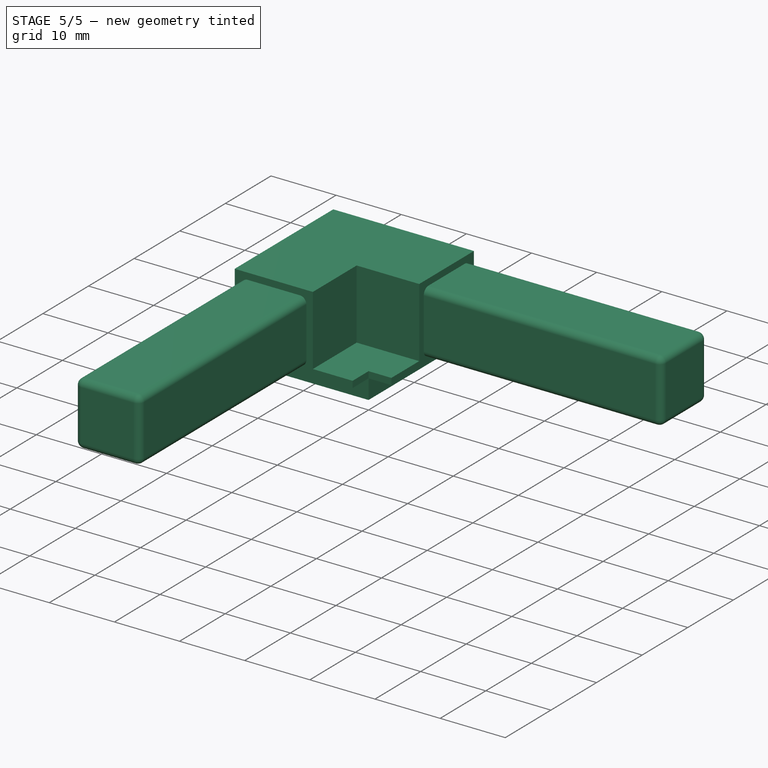
[diagram: stage 5 of 5 — iso view after this stage's code; geometry added in this stage tinted green]
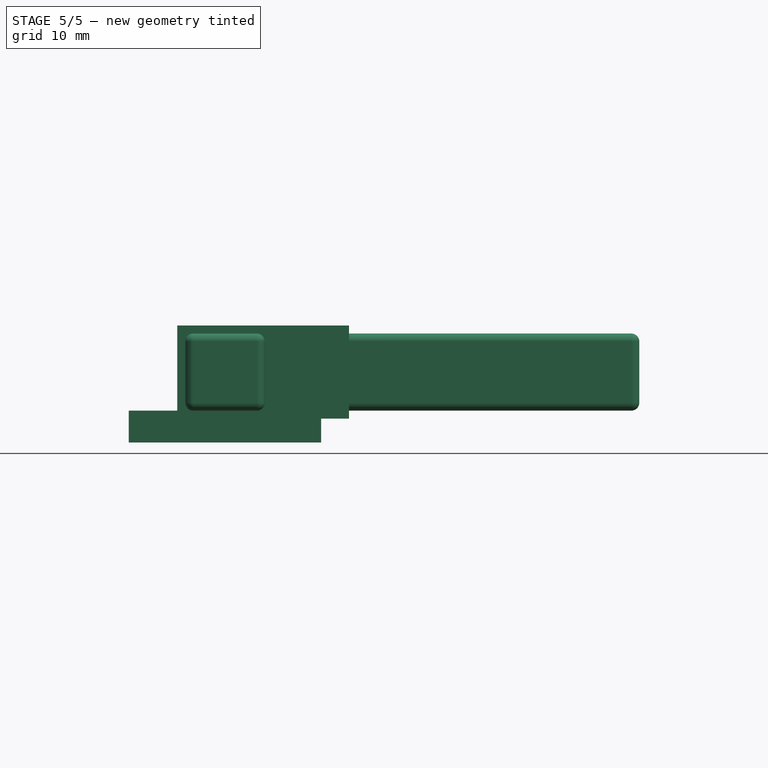
[diagram: stage 5 of 5 — front view after this stage's code; geometry added in this stage tinted green]
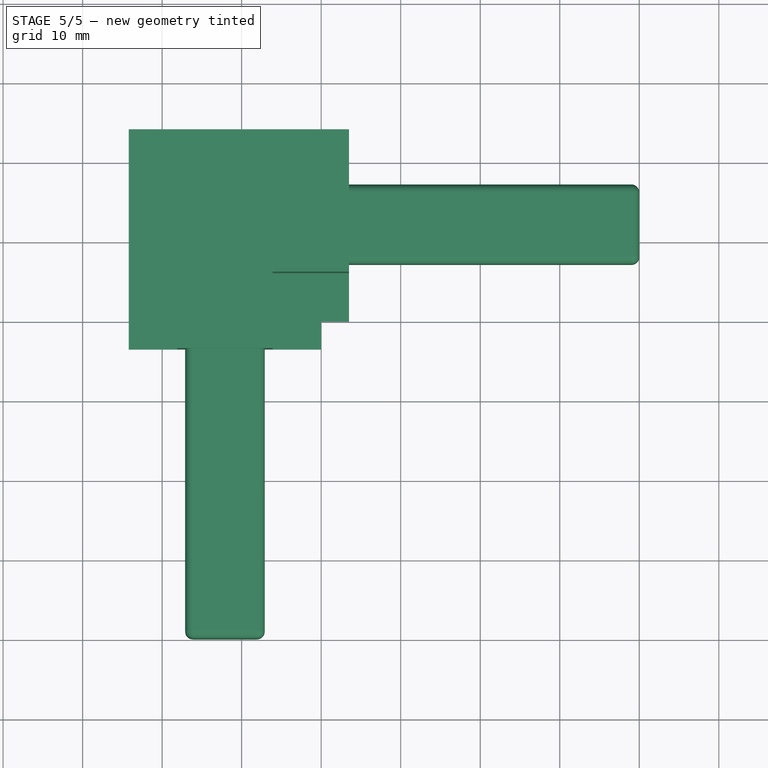
[diagram: stage 5 of 5 — top view after this stage's code; geometry added in this stage tinted green]
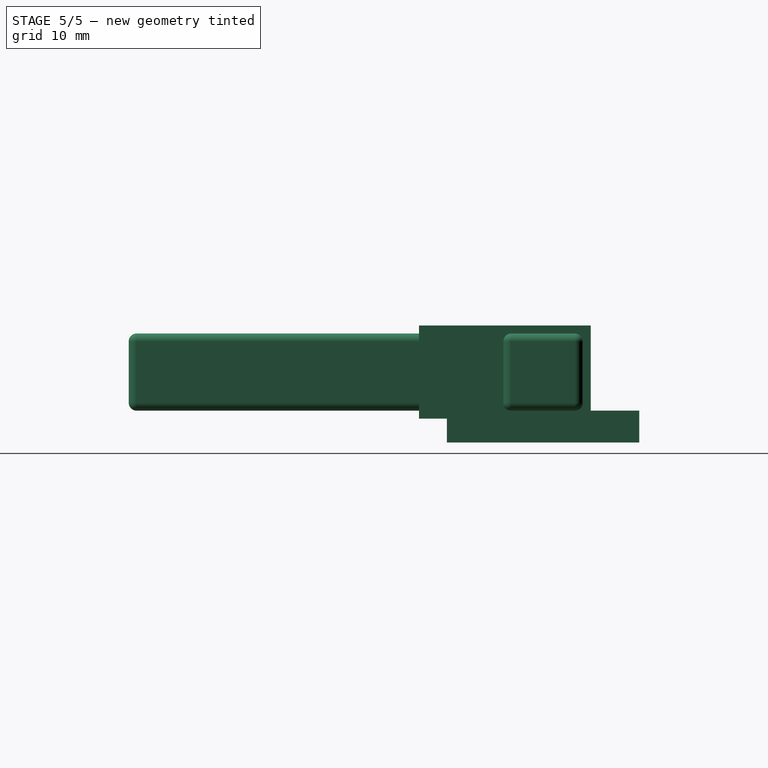
[diagram: stage 5 of 5 — right view after this stage's code; geometry added in this stage tinted green]
FEATURE [Sketcher::SketchObject] Sketch001
  AttachmentSupport = -> [Pad]
  ExternalGeometry = -> [Pad]
  FullyConstrained = true
  MapMode = 5
  Placement = pos=(40,0,0) rot=(0.57735,0.57735,0.57735;2.0944rad)
  sketch-geometry (8):
    g0: LineSegment StartX=7.1 StartY=10.7 StartZ=0 EndX=7.1 EndY=1 EndZ=0
    g1: LineSegment StartX=7.1 StartY=1 StartZ=0 EndX=17.1 EndY=1 EndZ=0
    g2: LineSegment StartX=17.1 StartY=1 StartZ=0 EndX=17.1 EndY=10.7 EndZ=0
    g3: LineSegment StartX=17.1 StartY=10.7 StartZ=0 EndX=7.1 EndY=10.7 EndZ=0
    g4: LineSegment StartX=24.7 StartY=11.7 StartZ=0 EndX=0 EndY=11.7 EndZ=0
    g5: LineSegment StartX=0 StartY=11.7 StartZ=0 EndX=0 EndY=0 EndZ=0
    g6: LineSegment StartX=0 StartY=0 StartZ=0 EndX=24.7 EndY=0 EndZ=0
    g7: LineSegment StartX=24.7 StartY=0 StartZ=0 EndX=24.7 EndY=11.7 EndZ=0
  constraints (22):
    c: Coincident(g0,g1)
    c: Coincident(g1,g2)
    c: Coincident(g2,g3)
    c: Coincident(g3,g0)
    c: Vertical(g0)
    c: Vertical(g2)
    c: Horizontal(g1)
    c: Horizontal(g3)
    c: Coincident(g4,g5)
    c: Coincident(g5,g6)
    c: Coincident(g6,g7)
    c: Coincident(g7,g4)
    c: Horizontal(g4)
    c: Horizontal(g6)
    c: Vertical(g5)
    c: Vertical(g7)
    c: Coincident(g4,g-3)
    c: Coincident(g5,g-1)
    c: DistanceX(g3,g3) = 10
    c: DistanceY(g0,g0) = 9.7
    c: DistanceX(g5,g0) = 7.1
    c: DistanceY(g6,g1) = 1
FEATURE [PartDesign::Pocket] Pocket
  BaseFeature = -> Pad
  Direction = (-1,0,0)
  Length = 40
  Length2 = 5
  Profile = -> Sketch001
  ReferenceAxis = -> Sketch001 [N_Axis]
  Refine = true
  Suppressed = false
  Type = 0
  expr: Length = 40
FEATURE [Sketcher::SketchObject] Sketch002
  AttachmentSupport = -> [Pocket]
  ExternalGeometry = -> [Pocket]
  FullyConstrained = true
  MapMode = 5
  Placement = pos=(0,-40,0) rot=(1,0,0;1.5708rad)
  sketch-geometry (8):
    g0: LineSegment StartX=-17.1 StartY=10.7 StartZ=0 EndX=-17.1 EndY=1 EndZ=0
    g1: LineSegment StartX=-17.1 StartY=1 StartZ=0 EndX=-7.1 EndY=1 EndZ=0
    g2: LineSegment StartX=-7.1 StartY=1 StartZ=0 EndX=-7.1 EndY=10.7 EndZ=0
    g3: LineSegment StartX=-7.1 StartY=10.7 StartZ=0 EndX=-17.1 EndY=10.7 EndZ=0
    g4: LineSegment StartX=-24.7 StartY=11.7 StartZ=0 EndX=-24.7 EndY=0 EndZ=0
    g5: LineSegment StartX=-24.7 StartY=0 StartZ=0 EndX=0 EndY=0 EndZ=0
    g6: LineSegment StartX=0 StartY=0 StartZ=0 EndX=0 EndY=11.7 EndZ=0
    g7: LineSegment StartX=0 StartY=11.7 StartZ=0 EndX=-24.7 EndY=11.7 EndZ=0
  constraints (22):
    c: Coincident(g0,g1)
    c: Coincident(g1,g2)
    c: Coincident(g2,g3)
    c: Coincident(g3,g0)
    c: Vertical(g0)
    c: Vertical(g2)
    c: Horizontal(g1)
    c: Horizontal(g3)
    c: Coincident(g4,g5)
    c: Coincident(g5,g6)
    c: Coincident(g6,g7)
    c: Coincident(g7,g4)
    c: Vertical(g4)
    c: Vertical(g6)
    c: Horizontal(g5)
    c: Horizontal(g7)
    c: Coincident(g4,g-3)
    c: Coincident(g5,g-1)
    c: DistanceX(g3,g3) = 10
    c: DistanceY(g0,g0) = 9.7
    c: DistanceX(g1,g5) = 7.1
    c: DistanceY(g5,g1) = 1
FEATURE [PartDesign::Pocket] Pocket001
  BaseFeature = -> Pocket
  Direction = (0,1,-2e-16)
  Length = 40
  Length2 = 5
  Profile = -> Sketch002
  ReferenceAxis = -> Sketch002 [N_Axis]
  Refine = true
  Suppressed = false
  Type = 0
FEATURE [Sketcher::SketchObject] Sketch003
  AttachmentSupport = -> [Pocket001]
  ExternalGeometry = -> [Pocket001]
  FullyConstrained = true
  MapMode = 5
  Placement = pos=(0,0,11.7) rot=(0,0,1;0rad)
  sketch-geometry (10):
    g0: LineSegment StartX=0 StartY=0 StartZ=0 EndX=0 EndY=6.1 EndZ=0
    g1: LineSegment StartX=0 StartY=6.1 StartZ=0 EndX=-6.1 EndY=6.1 EndZ=0
    g2: LineSegment StartX=-6.1 StartY=6.1 StartZ=0 EndX=-6.1 EndY=0 EndZ=0
    g3: LineSegment StartX=-6.1 StartY=0 StartZ=0 EndX=0 EndY=0 EndZ=0
    g4: LineSegment StartX=-24.7 StartY=24.7 StartZ=0 EndX=-24.7 EndY=0 EndZ=0
    g5: LineSegment StartX=-24.7 StartY=0 StartZ=0 EndX=-18.1 EndY=0 EndZ=0
    g6: LineSegment StartX=-18.1 StartY=0 StartZ=0 EndX=-18.1 EndY=18.1 EndZ=0
    g7: LineSegment StartX=-18.1 StartY=18.1 StartZ=0 EndX=0 EndY=18.1 EndZ=0
    g8: LineSegment StartX=0 StartY=18.1 StartZ=0 EndX=0 EndY=24.7 EndZ=0
    g9: LineSegment StartX=0 StartY=24.7 StartZ=0 EndX=-24.7 EndY=24.7 EndZ=0
  constraints (26):
    c: Coincident(g0,g1)
    c: Coincident(g1,g2)
    c: Coincident(g2,g3)
    c: Coincident(g3,g0)
    c: Vertical(g0)
    c: Vertical(g2)
    c: Horizontal(g1)
    c: Horizontal(g3)
    c: Coincident(g0,g-1)
    c: DistanceY(g0,g-3) = 1
    c: DistanceX(g-4,g2) = 1
    c: Coincident(g-6,g4)
    c: Coincident(g4,g-6)
    c: Coincident(g4,g5)
    c: PointOnObject(g5,g-1)
    c: Coincident(g5,g6)
    c: Vertical(g6)
    c: Coincident(g6,g7)
    c: PointOnObject(g7,g-2)
    c: Horizontal(g7)
    c: Coincident(g7,g8)
    c: Coincident(g8,g-5)
    c: Coincident(g8,g9)
    c: Coincident(g9,g4)
    c: Distance(g7,g-8) = 1
    c: DistanceX(g5,g-7) = 1
FEATURE [PartDesign::Pocket] Pocket002
  BaseFeature = -> Pocket001
  Direction = (0,0,-1)
  Length = 10.7
  Length2 = 5
  Profile = -> Sketch003
  ReferenceAxis = -> Sketch003 [N_Axis]
  Refine = true
  Suppressed = false
  Type = 0
FEATURE [PartDesign::Fillet] Fillet
  Base = -> Pocket002 [Edge6,Edge5,Edge8,Edge48,Edge47,Edge50,Edge10,Edge52]
  BaseFeature = -> Pocket002
  Radius = 1
  Refine = true
  SupportTransform = false
  Suppressed = false
  UseAllEdges = false
FEATURE [PartDesign::Fillet] Fillet001
  Base = -> Fillet [Edge1,Edge70]
  BaseFeature = -> Fillet
  Radius = 1
  Refine = true
  SupportTransform = false
  Suppressed = false
  UseAllEdges = false
FEATURE [PartDesign::Pocket] Pocket003
  BaseFeature = -> Fillet001
  Direction = (0,-1,0)
  Length = 0.5
  Length2 = 5
  Profile = -> Fillet001 [Face27]
  Refine = true
  Suppressed = false
  Type = 0
FEATURE [PartDesign::Pocket] Pocket004
  BaseFeature = -> Pocket003
  Direction = (1,0,0)
  Length = 0.5
  Length2 = 5
  Profile = -> Pocket003 [Face19]
  Refine = true
  Suppressed = false
  Type = 0
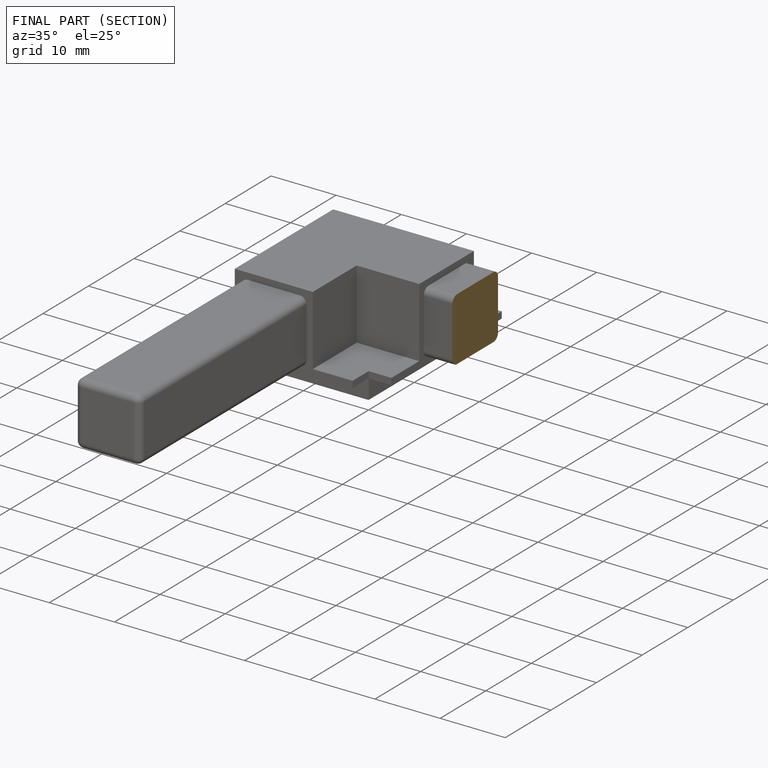
[diagram: finished part — half-section view (interior)]
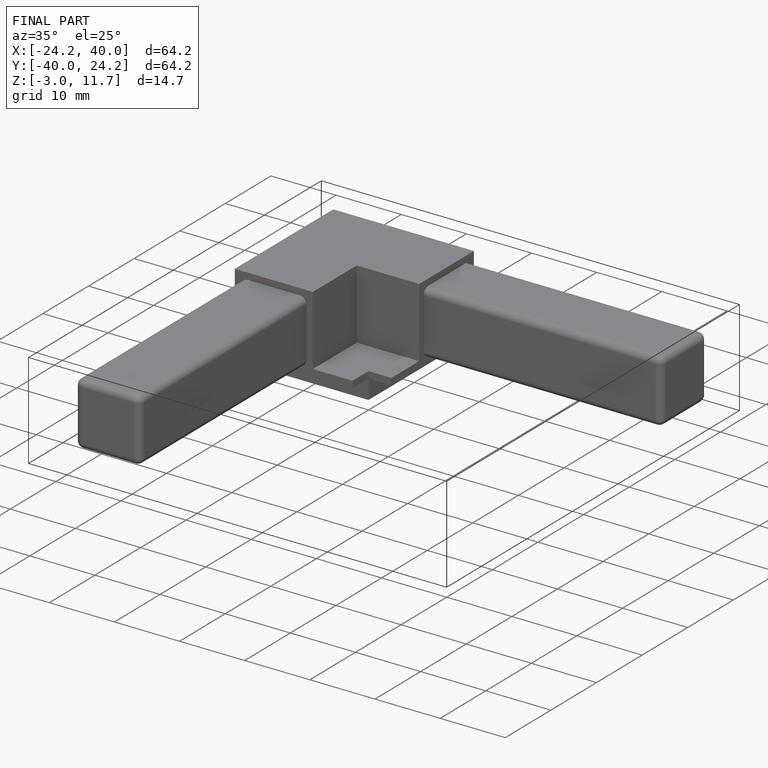
[diagram: finished part — iso view with bounding-box wireframe]
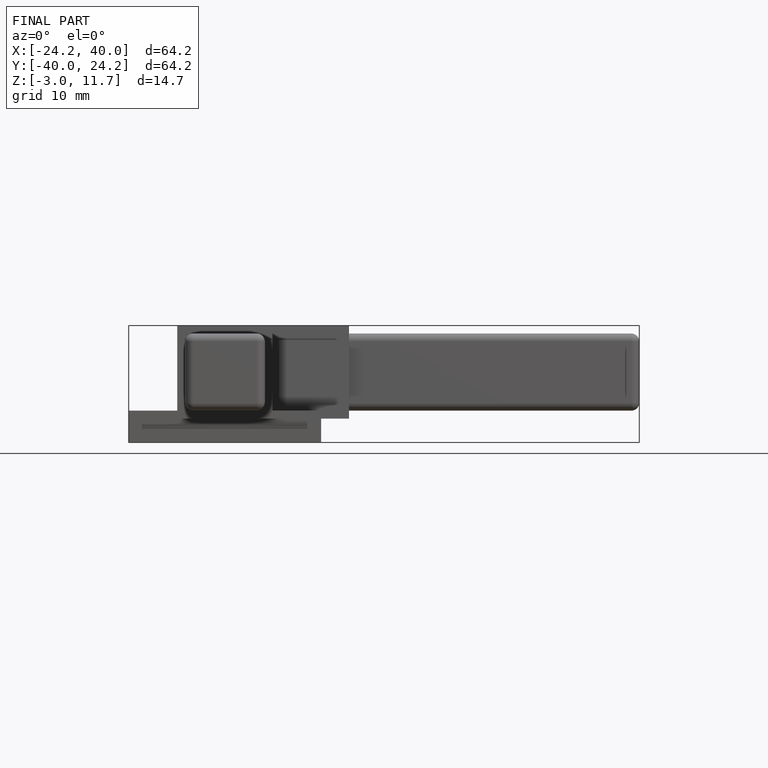
[diagram: finished part — front view with bounding-box wireframe]
